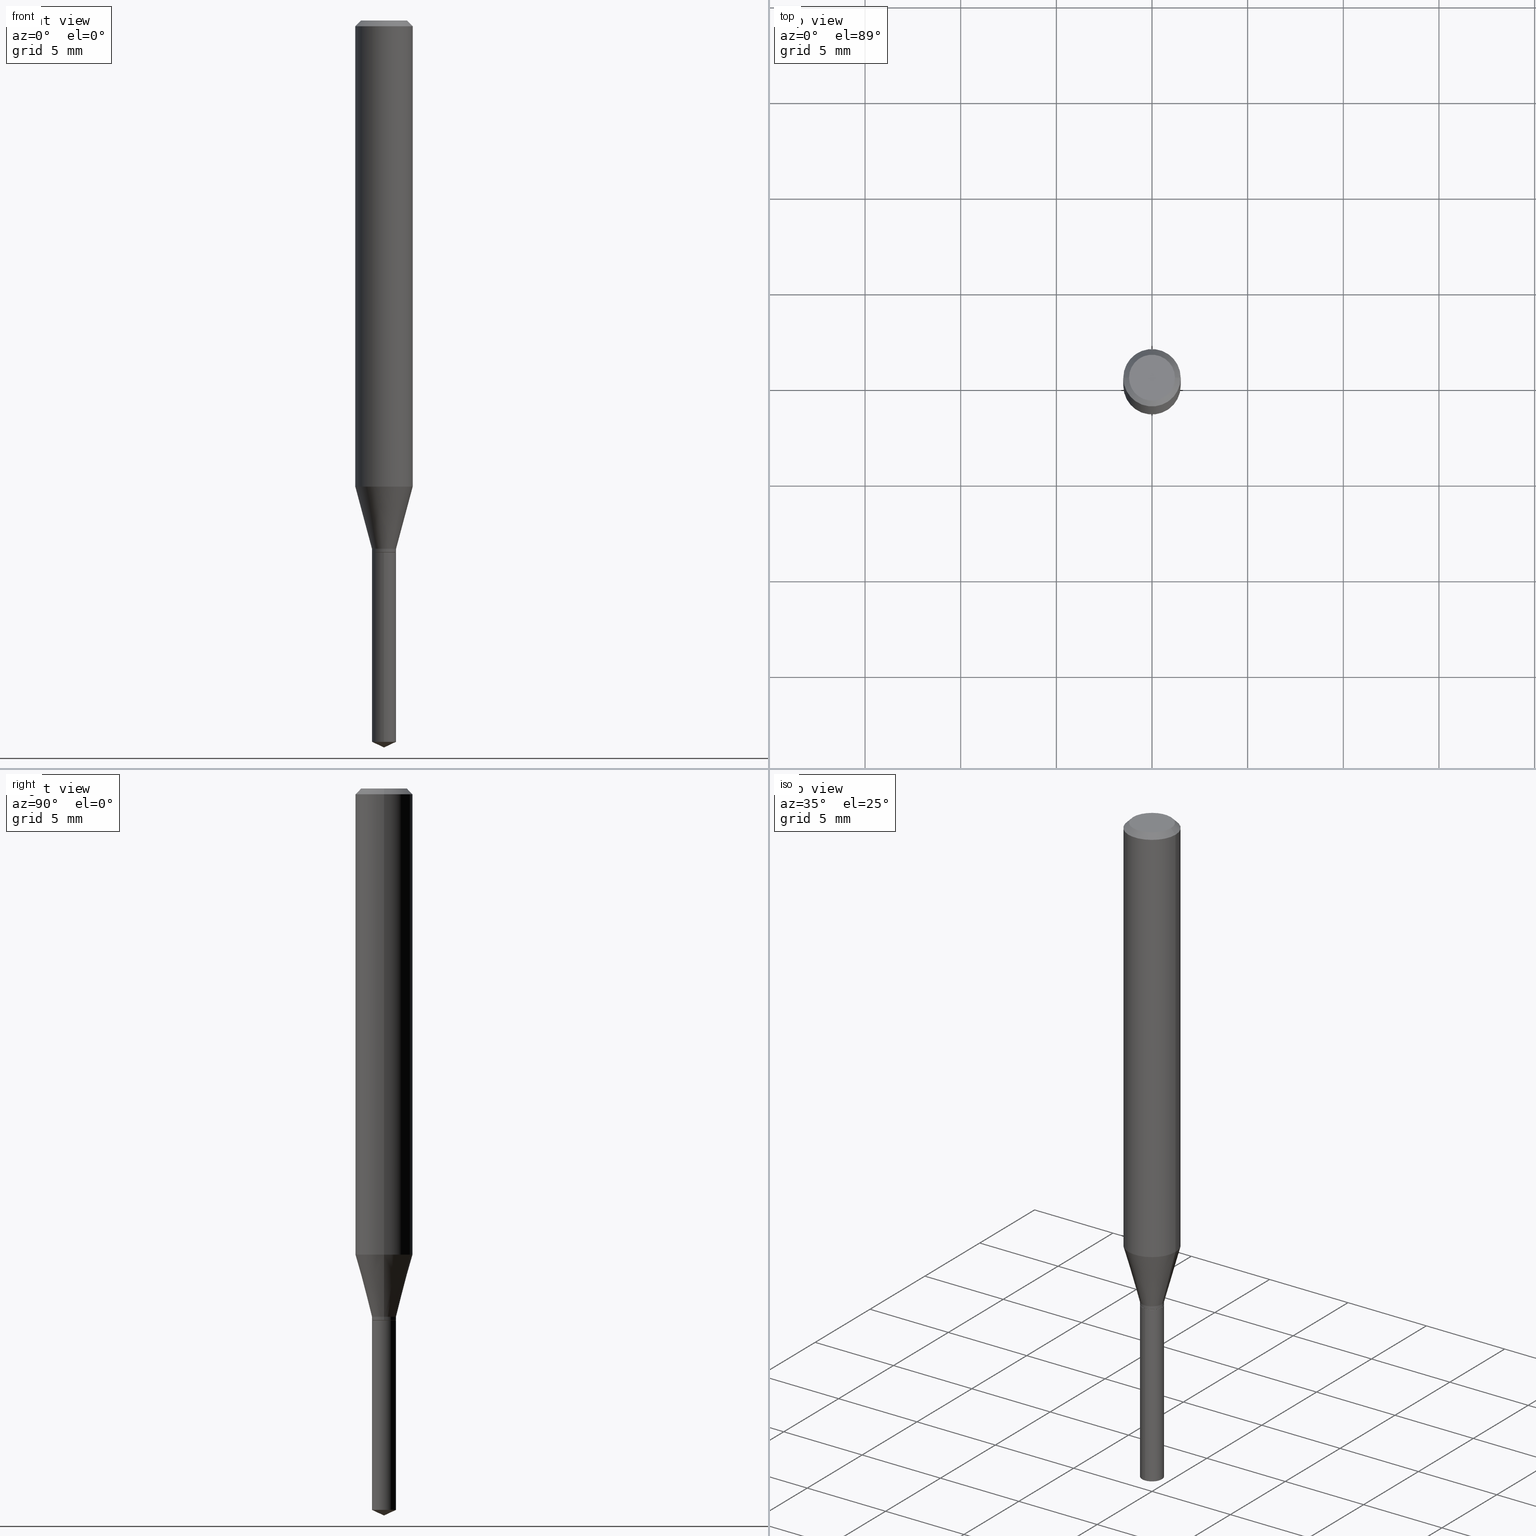
[diagram: canonical four-view strip — front | top / right | iso, engineering-drawing reading convention]
A machine part, canonical four-view strip (front | top / right | iso — engineering-drawing reading convention). The complete STEP part file that produces these views, byte-faithful:
ISO-10303-21;
HEADER;
FILE_DESCRIPTION (( 'STEP AP203' ),
    '1' );
FILE_NAME ('07512.STEP',
    '2024-04-23T22:18:39',
    ( '' ),
    ( '' ),
    'SwSTEP 2.0',
    'SolidWorks 2023',
    '' );
FILE_SCHEMA (( 'CONFIG_CONTROL_DESIGN' ));
ENDSEC;

DATA;
#1 = LINE ( 'NONE', #91, #456 ) ;
#2 = DIRECTION ( 'NONE',  ( -2.445468806185136597E-29, 3.491481338843145583E-15, 1.000000000000000000 ) ) ;
#3 = AXIS2_PLACEMENT_3D ( 'NONE', #328, #98, #468 ) ;
#4 = EDGE_CURVE ( 'NONE', #296, #408, #207, .T. ) ;
#5 = ORIENTED_EDGE ( 'NONE', *, *, #459, .T. ) ;
#6 = CONICAL_SURFACE ( 'NONE', #283, 0.05904999999999999832, 0.7853981633974450594 ) ;
#7 = DIRECTION ( 'NONE',  ( -6.982962677686265922E-15, -1.000000000000000000, 0.000000000000000000 ) ) ;
#8 = EDGE_LOOP ( 'NONE', ( #51, #186, #349, #178 ) ) ;
#9 = FACE_OUTER_BOUND ( 'NONE', #255, .T. ) ;
#10 = ORIENTED_EDGE ( 'NONE', *, *, #70, .T. ) ;
#11 = CARTESIAN_POINT ( 'NONE',  ( 2.676565608369631794E-29, -3.821426325363822773E-15, -1.094499999999999806 ) ) ;
#12 = EDGE_LOOP ( 'NONE', ( #188, #165, #390, #465 ) ) ;
#13 = VECTOR ( 'NONE', #434, 39.37007874015748854 ) ;
#14 = AXIS2_PLACEMENT_3D ( 'NONE', #457, #382, #122 ) ;
#15 = COORDINATED_UNIVERSAL_TIME_OFFSET ( 5, 0, .BEHIND. ) ;
#16 = CARTESIAN_POINT ( 'NONE',  ( -0.02479999999999998178, -3.619374764987879360E-15, -1.087099999999999955 ) ) ;
#17 = SECURITY_CLASSIFICATION_LEVEL ( 'unclassified' ) ;
#18 = DIRECTION ( 'NONE',  ( -0.2588190451025211281, 5.211531920934547886E-15, 0.9659258262890679791 ) ) ;
#19 = APPROVAL_ROLE ( '' ) ;
#20 = DIRECTION ( 'NONE',  ( -2.445468806185136877E-29, 3.491481338843145188E-15, 1.000000000000000000 ) ) ;
#21 = CIRCLE ( 'NONE', #3, 0.02429999999999999868 ) ;
#22 = PERSON_AND_ORGANIZATION_ROLE ( 'design_supplier' ) ;
#23 = EDGE_LOOP ( 'NONE', ( #413, #195, #31 ) ) ;
#24 = DIRECTION ( 'NONE',  ( 1.000000000000000000, -6.982962677686263555E-15, 0.000000000000000000 ) ) ;
#25 = ADVANCED_FACE ( 'NONE', ( #331 ), #131, .T. ) ;
#26 = DIRECTION ( 'NONE',  ( -2.445468806185136597E-29, 3.491481338843145583E-15, 1.000000000000000000 ) ) ;
#27 = CIRCLE ( 'NONE', #220, 0.05904999999999999832 ) ;
#28 = VECTOR ( 'NONE', #47, 39.37007874015748143 ) ;
#29 = CARTESIAN_POINT ( 'NONE',  ( 2.676565608369631794E-29, -3.821426325363822773E-15, -1.094499999999999806 ) ) ;
#30 = DIRECTION ( 'NONE',  ( -2.445468806185136597E-29, 3.491481338843145583E-15, 1.000000000000000000 ) ) ;
#31 = ORIENTED_EDGE ( 'NONE', *, *, #292, .F. ) ;
#32 = APPROVAL_DATE_TIME ( #179, #308 ) ;
#33 = CARTESIAN_POINT ( 'NONE',  ( 3.658664905062460986E-29, -5.223606628546217219E-15, -1.496099999999999985 ) ) ;
#34 = EDGE_LOOP ( 'NONE', ( #42, #247, #241, #90 ) ) ;
#35 = VECTOR ( 'NONE', #401, 39.37007874015748854 ) ;
#36 = CARTESIAN_POINT ( 'NONE',  ( 0.05904999999999999832, -4.535783407291118600E-16, -0.01181000000000007565 ) ) ;
#37 = CONICAL_SURFACE ( 'NONE', #183, 0.02429999999999999868, 0.7853981633973970977 ) ;
#38 = CARTESIAN_POINT ( 'NONE',  ( 2.676565608369631794E-29, -3.821426325363822773E-15, -1.094499999999999806 ) ) ;
#39 = EDGE_LOOP ( 'NONE', ( #419, #268, #455 ) ) ;
#40 = EDGE_CURVE ( 'NONE', #301, #374, #436, .T. ) ;
#41 = DIRECTION ( 'NONE',  ( -2.445468806185136877E-29, 3.491481338843145188E-15, 1.000000000000000000 ) ) ;
#42 = ORIENTED_EDGE ( 'NONE', *, *, #459, .F. ) ;
#43 = CARTESIAN_POINT ( 'NONE',  ( 1.762145984685411522E-16, 0.02479999999999482271, -1.484535570077756272 ) ) ;
#44 = CIRCLE ( 'NONE', #125, 0.02479999999999998178 ) ;
#45 = EDGE_LOOP ( 'NONE', ( #92, #416, #82, #448 ) ) ;
#46 = AXIS2_PLACEMENT_3D ( 'NONE', #262, #443, #410 ) ;
#47 = DIRECTION ( 'NONE',  ( -2.445468806185136877E-29, 3.491481338843145188E-15, 1.000000000000000000 ) ) ;
#48 = ORIENTED_EDGE ( 'NONE', *, *, #147, .T. ) ;
#49 = EDGE_CURVE ( 'NONE', #309, #320, #250, .T. ) ;
#50 = CARTESIAN_POINT ( 'NONE',  ( -0.05904999999999999832, 3.711095515056362547E-16, -0.01181000000000007565 ) ) ;
#51 = ORIENTED_EDGE ( 'NONE', *, *, #394, .T. ) ;
#52 = DIRECTION ( 'NONE',  ( -2.445468806185136597E-29, 3.491481338843145583E-15, 1.000000000000000000 ) ) ;
#53 = AXIS2_PLACEMENT_3D ( 'NONE', #191, #26, #143 ) ;
#54 = SECURITY_CLASSIFICATION ( '', '', #17 ) ;
#55 = PERSON_AND_ORGANIZATION ( #141, #447 ) ;
#56 = DIRECTION ( 'NONE',  ( -2.445470214571802116E-29, 3.491479321953280158E-15, 1.000000000000000000 ) ) ;
#57 = EDGE_CURVE ( 'NONE', #112, #376, #21, .T. ) ;
#58 = DIRECTION ( 'NONE',  ( -6.982962677686267499E-15, -1.000000000000000000, 3.520397390770401805E-15 ) ) ;
#59 = APPLICATION_PROTOCOL_DEFINITION ( 'international standard', 'config_control_design', 1994, #177 ) ;
#60 = DIRECTION ( 'NONE',  ( -2.445468806185136597E-29, 3.491481338843145583E-15, 1.000000000000000000 ) ) ;
#61 = AXIS2_PLACEMENT_3D ( 'NONE', #287, #249, #176 ) ;
#62 = APPROVAL_PERSON_ORGANIZATION ( #240, #308, #355 ) ;
#63 =( NAMED_UNIT ( * ) SI_UNIT ( $, .STERADIAN. ) SOLID_ANGLE_UNIT ( ) );
#64 = DIRECTION ( 'NONE',  ( -2.445468806185136597E-29, 3.491481338843145583E-15, 1.000000000000000000 ) ) ;
#65 = EDGE_CURVE ( 'NONE', #374, #490, #430, .T. ) ;
#66 = CARTESIAN_POINT ( 'NONE',  ( 0.02479999999999998178, -3.968766837863003197E-15, -1.087099999999999955 ) ) ;
#67 = DIRECTION ( 'NONE',  ( -2.445468806185136597E-29, 3.491481338843145583E-15, 1.000000000000000000 ) ) ;
#68 = ORIENTED_EDGE ( 'NONE', *, *, #389, .T. ) ;
#69 = AXIS2_PLACEMENT_3D ( 'NONE', #304, #67, #484 ) ;
#70 = EDGE_CURVE ( 'NONE', #301, #200, #89, .T. ) ;
#71 = CARTESIAN_POINT ( 'NONE',  ( 0.02479999999999998178, -3.992858059101019946E-15, -1.093999999999999861 ) ) ;
#72 = ORIENTED_EDGE ( 'NONE', *, *, #204, .F. ) ;
#73 = CARTESIAN_POINT ( 'NONE',  ( 2.676565608369631794E-29, -3.821426325363822773E-15, -1.094499999999999806 ) ) ;
#74 = EDGE_CURVE ( 'NONE', #193, #485, #95, .T. ) ;
#75 = EDGE_LOOP ( 'NONE', ( #386, #234, #383, #226 ) ) ;
#76 = FACE_OUTER_BOUND ( 'NONE', #202, .T. ) ;
#77 = ORIENTED_EDGE ( 'NONE', *, *, #292, .T. ) ;
#78 = EDGE_CURVE ( 'NONE', #408, #458, #169, .T. ) ;
#79 = VECTOR ( 'NONE', #441, 39.37007874015748143 ) ;
#80 = LINE ( 'NONE', #120, #387 ) ;
#81 = AXIS2_PLACEMENT_3D ( 'NONE', #422, #453, #391 ) ;
#82 = ORIENTED_EDGE ( 'NONE', *, *, #151, .T. ) ;
#83 = ADVANCED_FACE ( 'NONE', ( #213 ), #135, .T. ) ;
#84 = CYLINDRICAL_SURFACE ( 'NONE', #81, 0.02479999999999999913 ) ;
#85 = DIRECTION ( 'NONE',  ( 2.445468806185136597E-29, -3.491481338843145583E-15, -1.000000000000000000 ) ) ;
#86 = ORIENTED_EDGE ( 'NONE', *, *, #204, .T. ) ;
#87 = CARTESIAN_POINT ( 'NONE',  ( 3.630385977618317667E-29, -5.183227453116567846E-15, -1.484535570077756272 ) ) ;
#88 = EDGE_CURVE ( 'NONE', #490, #485, #257, .T. ) ;
#89 = CIRCLE ( 'NONE', #431, 0.02479999999999998178 ) ;
#90 = ORIENTED_EDGE ( 'NONE', *, *, #232, .T. ) ;
#91 = CARTESIAN_POINT ( 'NONE',  ( -1.731774744065926436E-16, -0.02480000000000381899, -1.094499999999999806 ) ) ;
#92 = ORIENTED_EDGE ( 'NONE', *, *, #101, .F. ) ;
#93 = ORIENTED_EDGE ( 'NONE', *, *, #49, .F. ) ;
#94 = DATE_AND_TIME ( #325, #478 ) ;
#95 = LINE ( 'NONE', #167, #35 ) ;
#96 = LOCAL_TIME ( 18, 18, 39.00000000000000000, #15 ) ;
#97 = DIRECTION ( 'NONE',  ( -2.445468806185136597E-29, 3.491481338843145583E-15, 1.000000000000000000 ) ) ;
#98 = DIRECTION ( 'NONE',  ( -2.445468806185136597E-29, 3.491481338843145583E-15, 1.000000000000000000 ) ) ;
#99 =( CONVERSION_BASED_UNIT ( 'INCH', #398 ) LENGTH_UNIT ( ) NAMED_UNIT ( #105 ) );
#100 = DIRECTION ( 'NONE',  ( -2.445470214571802396E-29, 3.491479321953280158E-15, 1.000000000000000000 ) ) ;
#101 = EDGE_CURVE ( 'NONE', #376, #301, #130, .T. ) ;
#102 =( GEOMETRIC_REPRESENTATION_CONTEXT ( 3 ) GLOBAL_UNCERTAINTY_ASSIGNED_CONTEXT ( ( #312 ) ) GLOBAL_UNIT_ASSIGNED_CONTEXT ( ( #99, #242, #63 ) ) REPRESENTATION_CONTEXT ( 'NONE', 'WORKASPACE' ) );
#103 = FACE_OUTER_BOUND ( 'NONE', #270, .T. ) ;
#104 = DIRECTION ( 'NONE',  ( -2.445468806185136877E-29, 3.491481338843145188E-15, 1.000000000000000000 ) ) ;
#105 = DIMENSIONAL_EXPONENTS ( 1.000000000000000000, 0.000000000000000000, 0.000000000000000000, 0.000000000000000000, 0.000000000000000000, 0.000000000000000000, 0.000000000000000000 ) ;
#106 = CARTESIAN_POINT ( 'NONE',  ( 2.658469139203861920E-29, -3.795589363456383732E-15, -1.087099999999999955 ) ) ;
#107 = ORIENTED_EDGE ( 'NONE', *, *, #57, .F. ) ;
#108 = CIRCLE ( 'NONE', #69, 0.02479999999999998178 ) ;
#109 = PRODUCT_RELATED_PRODUCT_CATEGORY ( 'detail', '', ( #475 ) ) ;
#110 = AXIS2_PLACEMENT_3D ( 'NONE', #87, #230, #7 ) ;
#111 = DIRECTION ( 'NONE',  ( 2.445468806185136597E-29, -3.491481338843145583E-15, -1.000000000000000000 ) ) ;
#112 = VERTEX_POINT ( 'NONE', #466 ) ;
#113 = CYLINDRICAL_SURFACE ( 'NONE', #46, 0.02479999999999998178 ) ;
#114 = CARTESIAN_POINT ( 'NONE',  ( 2.676565608369631794E-29, -3.821426325363822773E-15, -1.094499999999999806 ) ) ;
#115 = EDGE_CURVE ( 'NONE', #278, #119, #293, .T. ) ;
#116 = EDGE_LOOP ( 'NONE', ( #421, #48 ) ) ;
#117 = AXIS2_PLACEMENT_3D ( 'NONE', #145, #153, #335 ) ;
#118 = DIRECTION ( 'NONE',  ( -6.982962677686265922E-15, -1.000000000000000000, 5.507758051742466478E-15 ) ) ;
#119 = VERTEX_POINT ( 'NONE', #138 ) ;
#120 = CARTESIAN_POINT ( 'NONE',  ( 0.05904999999999999832, -4.463468013801466955E-16, -0.01181000000000007565 ) ) ;
#121 = ORIENTED_EDGE ( 'NONE', *, *, #74, .T. ) ;
#122 = DIRECTION ( 'NONE',  ( 1.000000000000000000, -6.982962677686266711E-15, 4.876176775795935793E-29 ) ) ;
#123 = ORIENTED_EDGE ( 'NONE', *, *, #49, .T. ) ;
#124 = CARTESIAN_POINT ( 'NONE',  ( 2.888098660104664642E-31, -4.123439461173780879E-17, -0.01181000000000007565 ) ) ;
#125 = AXIS2_PLACEMENT_3D ( 'NONE', #290, #52, #24 ) ;
#126 = APPLICATION_CONTEXT ( 'configuration controlled 3d designs of mechanical parts and assemblies' ) ;
#127 = APPROVAL_DATE_TIME ( #400, #429 ) ;
#128 = DIRECTION ( 'NONE',  ( -2.445470214571802116E-29, 3.491479321953280158E-15, 1.000000000000000000 ) ) ;
#129 = MECHANICAL_CONTEXT ( 'NONE', #126, 'mechanical' ) ;
#130 = LINE ( 'NONE', #321, #282 ) ;
#131 = CONICAL_SURFACE ( 'NONE', #418, 84.42940631927558570, 1.134464013796321558 ) ;
#132 = CIRCLE ( 'NONE', #197, 0.05905000000000011628 ) ;
#133 = EDGE_CURVE ( 'NONE', #193, #374, #44, .T. ) ;
#134 = PERSON_AND_ORGANIZATION ( #141, #447 ) ;
#135 = CYLINDRICAL_SURFACE ( 'NONE', #393, 0.02479999999999999913 ) ;
#136 = ADVANCED_FACE ( 'NONE', ( #280 ), #164, .T. ) ;
#137 = CALENDAR_DATE ( 2024, 23, 4 ) ;
#138 = CARTESIAN_POINT ( 'NONE',  ( 0.04724000000000000421, -3.852183633974369345E-16, -3.380025165621689721E-19 ) ) ;
#139 = LINE ( 'NONE', #291, #79 ) ;
#140 = AXIS2_PLACEMENT_3D ( 'NONE', #297, #377, #155 ) ;
#141 = PERSON ( 'UNSPECIFIED', 'UNSPECIFIED', 'UNSPECIFIED', ('UNSPECIFIED'), ('UNSPECIFIED'), ('UNSPECIFIED') ) ;
#142 = AXIS2_PLACEMENT_3D ( 'NONE', #467, #281, #433 ) ;
#143 = DIRECTION ( 'NONE',  ( 1.000000000000000000, -6.982962677686263555E-15, 0.000000000000000000 ) ) ;
#144 = ORIENTED_EDGE ( 'NONE', *, *, #232, .F. ) ;
#145 = CARTESIAN_POINT ( 'NONE',  ( 2.676565608369631794E-29, -3.821426325363822773E-15, -1.094499999999999806 ) ) ;
#146 = ORIENTED_EDGE ( 'NONE', *, *, #225, .T. ) ;
#147 = EDGE_CURVE ( 'NONE', #119, #278, #228, .T. ) ;
#148 = MANIFOLD_SOLID_BREP ( 'Body-Move/Copy2[1]', #302 ) ;
#149 = FACE_OUTER_BOUND ( 'NONE', #34, .T. ) ;
#150 = ORIENTED_EDGE ( 'NONE', *, *, #133, .F. ) ;
#151 = EDGE_CURVE ( 'NONE', #112, #200, #139, .T. ) ;
#152 = CIRCLE ( 'NONE', #174, 0.02479999999999999913 ) ;
#153 = DIRECTION ( 'NONE',  ( -2.445468806185136597E-29, 3.491481338843145583E-15, 1.000000000000000000 ) ) ;
#154 = PRODUCT_DEFINITION_SHAPE ( 'NONE', 'NONE',  #409 ) ;
#155 = DIRECTION ( 'NONE',  ( 1.000000000000000000, -6.982962677686266711E-15, 4.876176775795935793E-29 ) ) ;
#156 = CONICAL_SURFACE ( 'NONE', #347, 0.02479999999999998178, 0.2617993877991498519 ) ;
#157 = DIRECTION ( 'NONE',  ( 1.000000000000000000, -6.982962677686266711E-15, 4.876176775795935793E-29 ) ) ;
#158 = DIRECTION ( 'NONE',  ( -2.438088387897960049E-29, 3.491481338843145188E-15, 1.000000000000000000 ) ) ;
#159 = ORIENTED_EDGE ( 'NONE', *, *, #289, .F. ) ;
#160 = FACE_OUTER_BOUND ( 'NONE', #116, .T. ) ;
#161 = ORIENTED_EDGE ( 'NONE', *, *, #445, .F. ) ;
#162 = ADVANCED_FACE ( 'NONE', ( #482 ), #339, .T. ) ;
#163 = CARTESIAN_POINT ( 'NONE',  ( -1.731774744065926436E-16, -0.02480000000000381899, -1.094499999999999806 ) ) ;
#164 = CONICAL_SURFACE ( 'NONE', #439, 84.42940631927558570, 1.134464013796321558 ) ;
#165 = ORIENTED_EDGE ( 'NONE', *, *, #65, .T. ) ;
#166 = CC_DESIGN_PERSON_AND_ORGANIZATION_ASSIGNMENT ( #55, #248, ( #221 ) ) ;
#167 = CARTESIAN_POINT ( 'NONE',  ( 0.02479999999999998178, -3.968766837863003197E-15, -1.087099999999999955 ) ) ;
#168 = CALENDAR_DATE ( 2024, 23, 4 ) ;
#169 = LINE ( 'NONE', #246, #173 ) ;
#170 = DESIGN_CONTEXT ( 'detailed design', #177, 'design' ) ;
#171 = COORDINATED_UNIVERSAL_TIME_OFFSET ( 5, 0, .BEHIND. ) ;
#172 = DIRECTION ( 'NONE',  ( -2.445470214571802116E-29, 3.491479321953280158E-15, 1.000000000000000000 ) ) ;
#173 = VECTOR ( 'NONE', #100, 39.37007874015748143 ) ;
#174 = AXIS2_PLACEMENT_3D ( 'NONE', #406, #370, #222 ) ;
#175 =( LENGTH_UNIT ( ) NAMED_UNIT ( * ) SI_UNIT ( $, .METRE. ) );
#176 = DIRECTION ( 'NONE',  ( 1.000000000000000000, -6.982962677686266711E-15, 0.000000000000000000 ) ) ;
#177 = APPLICATION_CONTEXT ( 'configuration controlled 3d designs of mechanical parts and assemblies' ) ;
#178 = ORIENTED_EDGE ( 'NONE', *, *, #415, .F. ) ;
#179 = DATE_AND_TIME ( #367, #96 ) ;
#180 = CARTESIAN_POINT ( 'NONE',  ( 3.658667988020872822E-29, -5.223602213574301462E-15, -1.496099999999999985 ) ) ;
#181 = ORIENTED_EDGE ( 'NONE', *, *, #289, .T. ) ;
#182 = AXIS2_PLACEMENT_3D ( 'NONE', #405, #64, #366 ) ;
#183 = AXIS2_PLACEMENT_3D ( 'NONE', #11, #451, #275 ) ;
#184 = FACE_OUTER_BOUND ( 'NONE', #444, .T. ) ;
#185 = CARTESIAN_POINT ( 'NONE',  ( 2.658469139203861920E-29, -3.795589363456383732E-15, -1.087099999999999955 ) ) ;
#186 = ORIENTED_EDGE ( 'NONE', *, *, #78, .T. ) ;
#187 = FACE_OUTER_BOUND ( 'NONE', #12, .T. ) ;
#188 = ORIENTED_EDGE ( 'NONE', *, *, #133, .T. ) ;
#189 = EDGE_CURVE ( 'NONE', #200, #301, #108, .T. ) ;
#190 = CIRCLE ( 'NONE', #117, 0.02429999999999999868 ) ;
#191 = CARTESIAN_POINT ( 'NONE',  ( 2.658469139203861920E-29, -3.795589363456383732E-15, -1.087099999999999955 ) ) ;
#192 = PLANE ( 'NONE',  #243 ) ;
#193 = VERTEX_POINT ( 'NONE', #66 ) ;
#194 = FACE_OUTER_BOUND ( 'NONE', #483, .T. ) ;
#195 = ORIENTED_EDGE ( 'NONE', *, *, #237, .T. ) ;
#196 = CLOSED_SHELL ( 'NONE', ( #223, #469, #464, #298, #314, #162, #218, #472, #285, #486, #358, #449 ) ) ;
#197 = AXIS2_PLACEMENT_3D ( 'NONE', #388, #2, #385 ) ;
#198 = DIRECTION ( 'NONE',  ( -2.445470214571802396E-29, 3.491479321953280158E-15, 1.000000000000000000 ) ) ;
#199 = CC_DESIGN_PERSON_AND_ORGANIZATION_ASSIGNMENT ( #403, #22, ( #221 ) ) ;
#200 = VERTEX_POINT ( 'NONE', #71 ) ;
#201 = LINE ( 'NONE', #313, #28 ) ;
#202 = EDGE_LOOP ( 'NONE', ( #107, #462 ) ) ;
#203 = LINE ( 'NONE', #50, #425 ) ;
#204 = EDGE_CURVE ( 'NONE', #374, #193, #363, .T. ) ;
#205 = APPROVAL_STATUS ( 'not_yet_approved' ) ;
#206 = CONICAL_SURFACE ( 'NONE', #53, 0.02479999999999998178, 0.2617993877991498519 ) ;
#207 = LINE ( 'NONE', #392, #13 ) ;
#208 = PERSON_AND_ORGANIZATION ( #141, #447 ) ;
#209 = DIRECTION ( 'NONE',  ( -6.982962677686267499E-15, -1.000000000000000000, 3.520397390770401805E-15 ) ) ;
#210 = COORDINATED_UNIVERSAL_TIME_OFFSET ( 5, 0, .BEHIND. ) ;
#211 = ORIENTED_EDGE ( 'NONE', *, *, #78, .F. ) ;
#212 = DATE_AND_TIME ( #357, #411 ) ;
#213 = FACE_OUTER_BOUND ( 'NONE', #8, .T. ) ;
#214 = AXIS2_PLACEMENT_3D ( 'NONE', #356, #97, #359 ) ;
#215 = APPROVAL_ROLE ( '' ) ;
#216 = CARTESIAN_POINT ( 'NONE',  ( -0.02479999999999998178, 1.762145984685047166E-16, -1.219895902383215719E-30 ) ) ;
#217 = DIRECTION ( 'NONE',  ( 1.000000000000000000, -6.982962677686263555E-15, 0.000000000000000000 ) ) ;
#218 = ADVANCED_FACE ( 'NONE', ( #184 ), #206, .T. ) ;
#219 = CARTESIAN_POINT ( 'NONE',  ( -0.04724000000000000421, 3.504923541997677355E-16, -3.380025165670481712E-19 ) ) ;
#220 = AXIS2_PLACEMENT_3D ( 'NONE', #338, #375, #254 ) ;
#221 = PRODUCT_DEFINITION_FORMATION_WITH_SPECIFIED_SOURCE ( 'ANY', '', #475, .NOT_KNOWN. ) ;
#222 = DIRECTION ( 'NONE',  ( -6.982962677686265922E-15, -1.000000000000000000, 0.000000000000000000 ) ) ;
#223 = ADVANCED_FACE ( 'NONE', ( #305 ), #477, .T. ) ;
#224 = DIRECTION ( 'NONE',  ( -6.982962677686265922E-15, -1.000000000000000000, 5.507758051742466478E-15 ) ) ;
#225 = EDGE_CURVE ( 'NONE', #485, #309, #227, .T. ) ;
#226 = ORIENTED_EDGE ( 'NONE', *, *, #151, .F. ) ;
#227 = LINE ( 'NONE', #412, #332 ) ;
#228 = CIRCLE ( 'NONE', #182, 0.04724000000000000421 ) ;
#229 = CARTESIAN_POINT ( 'NONE',  ( 0.000000000000000000, 0.000000000000000000, 0.000000000000000000 ) ) ;
#230 = DIRECTION ( 'NONE',  ( -2.445470214571802116E-29, 3.491479321953280158E-15, 1.000000000000000000 ) ) ;
#231 = ORIENTED_EDGE ( 'NONE', *, *, #381, .T. ) ;
#232 = EDGE_CURVE ( 'NONE', #320, #309, #27, .T. ) ;
#233 = DIRECTION ( 'NONE',  ( -2.445470214571802116E-29, 3.491479321953280158E-15, 1.000000000000000000 ) ) ;
#234 = ORIENTED_EDGE ( 'NONE', *, *, #101, .T. ) ;
#235 = CC_DESIGN_SECURITY_CLASSIFICATION ( #54, ( #221 ) ) ;
#236 = FACE_OUTER_BOUND ( 'NONE', #45, .T. ) ;
#237 = EDGE_CURVE ( 'NONE', #296, #284, #372, .T. ) ;
#238 = DIRECTION ( 'NONE',  ( -1.000000000000000000, 6.982962677686265922E-15, -4.876176775795935793E-29 ) ) ;
#239 = EDGE_LOOP ( 'NONE', ( #211, #77, #481, #159 ) ) ;
#240 = PERSON_AND_ORGANIZATION ( #141, #447 ) ;
#241 = ORIENTED_EDGE ( 'NONE', *, *, #435, .T. ) ;
#242 =( NAMED_UNIT ( * ) PLANE_ANGLE_UNIT ( ) SI_UNIT ( $, .RADIAN. ) );
#243 = AXIS2_PLACEMENT_3D ( 'NONE', #315, #461, #238 ) ;
#244 = CARTESIAN_POINT ( 'NONE',  ( 2.676565608369631794E-29, -3.821426325363822773E-15, -1.094499999999999806 ) ) ;
#245 = PERSON_AND_ORGANIZATION_ROLE ( 'design_owner' ) ;
#246 = CARTESIAN_POINT ( 'NONE',  ( 1.762145984685315626E-16, 0.02479999999999617927, -1.094500000000000028 ) ) ;
#247 = ORIENTED_EDGE ( 'NONE', *, *, #115, .F. ) ;
#248 = PERSON_AND_ORGANIZATION_ROLE ( 'creator' ) ;
#249 = DIRECTION ( 'NONE',  ( -2.445468806185136597E-29, 3.491481338843145583E-15, 1.000000000000000000 ) ) ;
#250 = CIRCLE ( 'NONE', #214, 0.05904999999999999832 ) ;
#251 = AXIS2_PLACEMENT_3D ( 'NONE', #73, #295, #224 ) ;
#252 = PLANE ( 'NONE',  #326 ) ;
#253 = APPROVAL ( #322, 'UNSPECIFIED' ) ;
#254 = DIRECTION ( 'NONE',  ( 1.000000000000000000, -6.982962677686266711E-15, 0.000000000000000000 ) ) ;
#255 = EDGE_LOOP ( 'NONE', ( #161, #340, #146, #144 ) ) ;
#256 = DIRECTION ( 'NONE',  ( 1.000000000000000000, -6.982962677686263555E-15, 0.000000000000000000 ) ) ;
#257 = CIRCLE ( 'NONE', #61, 0.05905000000000011628 ) ;
#258 = APPROVAL_PERSON_ORGANIZATION ( #329, #429, #215 ) ;
#259 = CC_DESIGN_DATE_AND_TIME_ASSIGNMENT ( #428, #437, ( #54 ) ) ;
#260 = DIRECTION ( 'NONE',  ( -2.445468806185136597E-29, 3.491481338843145583E-15, 1.000000000000000000 ) ) ;
#261 = ORIENTED_EDGE ( 'NONE', *, *, #445, .T. ) ;
#262 = CARTESIAN_POINT ( 'NONE',  ( 0.000000000000000000, 0.000000000000000000, 0.000000000000000000 ) ) ;
#263 = CARTESIAN_POINT ( 'NONE',  ( 1.762145984685411522E-16, 0.02479999999999617927, -1.094500000000000028 ) ) ;
#264 = ORIENTED_EDGE ( 'NONE', *, *, #40, .T. ) ;
#265 = CIRCLE ( 'NONE', #251, 0.02479999999999999913 ) ;
#266 = CC_DESIGN_APPROVAL ( #429, ( #409 ) ) ;
#267 = CARTESIAN_POINT ( 'NONE',  ( -0.05905000000000011628, -2.929723166044281078E-15, -0.9592772598407656170 ) ) ;
#268 = ORIENTED_EDGE ( 'NONE', *, *, #4, .T. ) ;
#269 = FACE_OUTER_BOUND ( 'NONE', #452, .T. ) ;
#270 = EDGE_LOOP ( 'NONE', ( #231, #181 ) ) ;
#271 = ADVANCED_FACE ( 'NONE', ( #103 ), #252, .F. ) ;
#272 = CARTESIAN_POINT ( 'NONE',  ( 0.05905000000000011628, -3.761642597627995886E-15, -0.9592772598407656170 ) ) ;
#273 = AXIS2_PLACEMENT_3D ( 'NONE', #185, #260, #217 ) ;
#274 = CC_DESIGN_APPROVAL ( #253, ( #221 ) ) ;
#275 = DIRECTION ( 'NONE',  ( 1.000000000000000000, -6.982962677686257244E-15, 0.000000000000000000 ) ) ;
#276 = ORIENTED_EDGE ( 'NONE', *, *, #147, .F. ) ;
#277 = PERSON_AND_ORGANIZATION_ROLE ( 'creator' ) ;
#278 = VERTEX_POINT ( 'NONE', #219 ) ;
#279 = APPROVAL_STATUS ( 'not_yet_approved' ) ;
#280 = FACE_OUTER_BOUND ( 'NONE', #39, .T. ) ;
#281 = DIRECTION ( 'NONE',  ( 0.000000000000000000, 0.000000000000000000, 1.000000000000000000 ) ) ;
#282 = VECTOR ( 'NONE', #330, 39.37007874015748143 ) ;
#283 = AXIS2_PLACEMENT_3D ( 'NONE', #124, #85, #460 ) ;
#284 = VERTEX_POINT ( 'NONE', #368 ) ;
#285 = ADVANCED_FACE ( 'NONE', ( #149 ), #380, .T. ) ;
#286 = COORDINATED_UNIVERSAL_TIME_OFFSET ( 5, 0, .BEHIND. ) ;
#287 = CARTESIAN_POINT ( 'NONE',  ( 2.345882615423346285E-29, -3.349298651510620571E-15, -0.9592772598407656170 ) ) ;
#288 = PERSON_AND_ORGANIZATION_ROLE ( 'classification_officer' ) ;
#289 = EDGE_CURVE ( 'NONE', #458, #378, #265, .T. ) ;
#290 = CARTESIAN_POINT ( 'NONE',  ( 2.658469139203861920E-29, -3.795589363456383732E-15, -1.087099999999999955 ) ) ;
#291 = CARTESIAN_POINT ( 'NONE',  ( 0.02429999999999999868, -3.991112318431598442E-15, -1.094499999999999806 ) ) ;
#292 = EDGE_CURVE ( 'NONE', #408, #284, #152, .T. ) ;
#293 = CIRCLE ( 'NONE', #317, 0.04724000000000000421 ) ;
#294 = CIRCLE ( 'NONE', #404, 0.02479999999999999913 ) ;
#295 = DIRECTION ( 'NONE',  ( -2.445470214571802116E-29, 3.491479321953280158E-15, 1.000000000000000000 ) ) ;
#296 = VERTEX_POINT ( 'NONE', #180 ) ;
#297 = CARTESIAN_POINT ( 'NONE',  ( 0.000000000000000000, 0.000000000000000000, 0.000000000000000000 ) ) ;
#298 = ADVANCED_FACE ( 'NONE', ( #187 ), #156, .T. ) ;
#299 = MANIFOLD_SOLID_BREP ( 'Body-Move/Copy2[2]', #196 ) ;
#300 = CARTESIAN_POINT ( 'NONE',  ( 2.676565608369631794E-29, -3.821426325363822773E-15, -1.094499999999999806 ) ) ;
#301 = VERTEX_POINT ( 'NONE', #487 ) ;
#302 = CLOSED_SHELL ( 'NONE', ( #83, #136, #25, #365, #271 ) ) ;
#303 = EDGE_CURVE ( 'NONE', #376, #112, #190, .T. ) ;
#304 = CARTESIAN_POINT ( 'NONE',  ( 2.675342873966538993E-29, -3.819680584694400481E-15, -1.093999999999999861 ) ) ;
#305 = FACE_OUTER_BOUND ( 'NONE', #75, .T. ) ;
#306 = EDGE_LOOP ( 'NONE', ( #316, #10, #68, #72 ) ) ;
#307 = CARTESIAN_POINT ( 'NONE',  ( -0.02429999999999999868, -3.646115213400007310E-15, -1.094499999999999806 ) ) ;
#308 = APPROVAL ( #205, 'UNSPECIFIED' ) ;
#309 = VERTEX_POINT ( 'NONE', #36 ) ;
#310 = LOCAL_TIME ( 18, 18, 39.00000000000000000, #286 ) ;
#311 = CYLINDRICAL_SURFACE ( 'NONE', #14, 0.05905000000000006077 ) ;
#312 = UNCERTAINTY_MEASURE_WITH_UNIT (LENGTH_MEASURE( 1.000000000000000082E-05 ), #99, 'distance_accuracy_value', 'NONE');
#313 = CARTESIAN_POINT ( 'NONE',  ( 0.02479999999999998178, -1.731774744066192923E-16, 1.209291840397391216E-30 ) ) ;
#314 = ADVANCED_FACE ( 'NONE', ( #333 ), #113, .T. ) ;
#315 = CARTESIAN_POINT ( 'NONE',  ( 4.132873053354867254E-48, -5.900647395337818946E-34, -1.690012582823346072E-19 ) ) ;
#316 = ORIENTED_EDGE ( 'NONE', *, *, #40, .F. ) ;
#317 = AXIS2_PLACEMENT_3D ( 'NONE', #397, #474, #323 ) ;
#318 = AXIS2_PLACEMENT_3D ( 'NONE', #229, #351, #157 ) ;
#319 = APPLICATION_PROTOCOL_DEFINITION ( 'international standard', 'config_control_design', 1994, #126 ) ;
#320 = VERTEX_POINT ( 'NONE', #414 ) ;
#321 = CARTESIAN_POINT ( 'NONE',  ( -0.02429999999999999868, -3.648764440574118511E-15, -1.094499999999999806 ) ) ;
#322 = APPROVAL_STATUS ( 'not_yet_approved' ) ;
#323 = DIRECTION ( 'NONE',  ( 1.000000000000000000, -6.982962677686266711E-15, 4.876185090822587894E-29 ) ) ;
#324 = CC_DESIGN_PERSON_AND_ORGANIZATION_ASSIGNMENT ( #134, #288, ( #54 ) ) ;
#325 = CALENDAR_DATE ( 2024, 23, 4 ) ;
#326 = AXIS2_PLACEMENT_3D ( 'NONE', #29, #407, #450 ) ;
#327 = AXIS2_PLACEMENT_3D ( 'NONE', #489, #111, #442 ) ;
#328 = CARTESIAN_POINT ( 'NONE',  ( 2.676565608369631794E-29, -3.821426325363822773E-15, -1.094499999999999806 ) ) ;
#329 = PERSON_AND_ORGANIZATION ( #141, #447 ) ;
#330 = DIRECTION ( 'NONE',  ( -0.7071067811865112684, 7.493145998870223209E-15, 0.7071067811865837660 ) ) ;
#331 = FACE_OUTER_BOUND ( 'NONE', #23, .T. ) ;
#332 = VECTOR ( 'NONE', #104, 39.37007874015748143 ) ;
#333 = FACE_OUTER_BOUND ( 'NONE', #427, .T. ) ;
#334 = ORIENTED_EDGE ( 'NONE', *, *, #189, .T. ) ;
#335 = DIRECTION ( 'NONE',  ( 1.000000000000000000, -6.982962677686257244E-15, 0.000000000000000000 ) ) ;
#336 = ORIENTED_EDGE ( 'NONE', *, *, #225, .F. ) ;
#337 = DIRECTION ( 'NONE',  ( 1.000000000000000000, -6.982962677686257244E-15, 0.000000000000000000 ) ) ;
#338 = CARTESIAN_POINT ( 'NONE',  ( 2.888098660104664642E-31, -4.123439461173780879E-17, -0.01181000000000007565 ) ) ;
#339 = CYLINDRICAL_SURFACE ( 'NONE', #140, 0.02479999999999998178 ) ;
#340 = ORIENTED_EDGE ( 'NONE', *, *, #88, .T. ) ;
#341 = ADVANCED_BREP_SHAPE_REPRESENTATION ( '07512', ( #148, #299, #142 ), #102 ) ;
#342 = CC_DESIGN_PERSON_AND_ORGANIZATION_ASSIGNMENT ( #208, #277, ( #409 ) ) ;
#343 = DIRECTION ( 'NONE',  ( 1.000000000000000000, -6.982962677686265922E-15, 4.876176775795935793E-29 ) ) ;
#344 = PLANE ( 'NONE',  #395 ) ;
#345 = ORIENTED_EDGE ( 'NONE', *, *, #389, .F. ) ;
#346 = VECTOR ( 'NONE', #446, 39.37007874015748143 ) ;
#347 = AXIS2_PLACEMENT_3D ( 'NONE', #106, #30, #256 ) ;
#348 = CYLINDRICAL_SURFACE ( 'NONE', #318, 0.05905000000000006077 ) ;
#349 = ORIENTED_EDGE ( 'NONE', *, *, #381, .F. ) ;
#350 = CC_DESIGN_PERSON_AND_ORGANIZATION_ASSIGNMENT ( #360, #245, ( #475 ) ) ;
#351 = DIRECTION ( 'NONE',  ( -2.445468806185136597E-29, 3.491481338843145583E-15, 1.000000000000000000 ) ) ;
#352 = ORIENTED_EDGE ( 'NONE', *, *, #435, .F. ) ;
#353 = CARTESIAN_POINT ( 'NONE',  ( -0.05905000000000006077, 4.195754854663395916E-16, -2.904631170795524694E-30 ) ) ;
#354 = ORIENTED_EDGE ( 'NONE', *, *, #88, .F. ) ;
#355 = APPROVAL_ROLE ( '' ) ;
#356 = CARTESIAN_POINT ( 'NONE',  ( 2.888098660104664642E-31, -4.123439461173780879E-17, -0.01181000000000007565 ) ) ;
#357 = CALENDAR_DATE ( 2024, 23, 4 ) ;
#358 = ADVANCED_FACE ( 'NONE', ( #76 ), #344, .F. ) ;
#359 = DIRECTION ( 'NONE',  ( 1.000000000000000000, -6.982962677686266711E-15, 0.000000000000000000 ) ) ;
#360 = PERSON_AND_ORGANIZATION ( #141, #447 ) ;
#361 = ORIENTED_EDGE ( 'NONE', *, *, #402, .T. ) ;
#362 = DATE_TIME_ROLE ( 'creation_date' ) ;
#363 = CIRCLE ( 'NONE', #273, 0.02479999999999998178 ) ;
#364 = DIRECTION ( 'NONE',  ( -6.982962677686265922E-15, -1.000000000000000000, 5.507758051742466478E-15 ) ) ;
#365 = ADVANCED_FACE ( 'NONE', ( #420 ), #84, .T. ) ;
#366 = DIRECTION ( 'NONE',  ( 1.000000000000000000, -6.982962677686266711E-15, 4.876185090822587894E-29 ) ) ;
#367 = CALENDAR_DATE ( 2024, 23, 4 ) ;
#368 = CARTESIAN_POINT ( 'NONE',  ( -1.731774744065831280E-16, -0.02480000000000518595, -1.484535570077756272 ) ) ;
#369 = SHAPE_DEFINITION_REPRESENTATION ( #154, #341 ) ;
#370 = DIRECTION ( 'NONE',  ( -2.445470214571802116E-29, 3.491479321953280158E-15, 1.000000000000000000 ) ) ;
#371 = CC_DESIGN_APPROVAL ( #308, ( #54 ) ) ;
#372 = LINE ( 'NONE', #33, #346 ) ;
#373 = CC_DESIGN_DATE_AND_TIME_ASSIGNMENT ( #212, #362, ( #409 ) ) ;
#374 = VERTEX_POINT ( 'NONE', #424 ) ;
#375 = DIRECTION ( 'NONE',  ( -2.445468806185136597E-29, 3.491481338843145583E-15, 1.000000000000000000 ) ) ;
#376 = VERTEX_POINT ( 'NONE', #307 ) ;
#377 = DIRECTION ( 'NONE',  ( -2.445468806185136597E-29, 3.491481338843145583E-15, 1.000000000000000000 ) ) ;
#378 = VERTEX_POINT ( 'NONE', #163 ) ;
#379 = VECTOR ( 'NONE', #18, 39.37007874015748854 ) ;
#380 = CONICAL_SURFACE ( 'NONE', #327, 0.05904999999999999832, 0.7853981633974450594 ) ;
#381 = EDGE_CURVE ( 'NONE', #378, #458, #294, .T. ) ;
#382 = DIRECTION ( 'NONE',  ( -2.445468806185136597E-29, 3.491481338843145583E-15, 1.000000000000000000 ) ) ;
#383 = ORIENTED_EDGE ( 'NONE', *, *, #189, .F. ) ;
#384 = DIRECTION ( 'NONE',  ( -0.7071067811865452413, 2.468850131082233000E-15, -0.7071067811865497932 ) ) ;
#385 = DIRECTION ( 'NONE',  ( 1.000000000000000000, -6.982962677686266711E-15, 0.000000000000000000 ) ) ;
#386 = ORIENTED_EDGE ( 'NONE', *, *, #57, .T. ) ;
#387 = VECTOR ( 'NONE', #426, 39.37007874015748143 ) ;
#388 = CARTESIAN_POINT ( 'NONE',  ( 2.345882615423346285E-29, -3.349298651510620571E-15, -0.9592772598407656170 ) ) ;
#389 = EDGE_CURVE ( 'NONE', #200, #193, #201, .T. ) ;
#390 = ORIENTED_EDGE ( 'NONE', *, *, #402, .F. ) ;
#391 = DIRECTION ( 'NONE',  ( -6.982962677686265922E-15, -1.000000000000000000, 5.507758051742466478E-15 ) ) ;
#392 = CARTESIAN_POINT ( 'NONE',  ( 3.658668015054778287E-29, -5.223602213574301462E-15, -1.496099999999999985 ) ) ;
#393 = AXIS2_PLACEMENT_3D ( 'NONE', #244, #172, #364 ) ;
#394 = EDGE_CURVE ( 'NONE', #284, #408, #440, .T. ) ;
#395 = AXIS2_PLACEMENT_3D ( 'NONE', #114, #158, #343 ) ;
#396 = PERSON_AND_ORGANIZATION ( #141, #447 ) ;
#397 = CARTESIAN_POINT ( 'NONE',  ( 8.265746106709734507E-48, -1.180129479067563789E-33, -3.380025165646692144E-19 ) ) ;
#398 = LENGTH_MEASURE_WITH_UNIT ( LENGTH_MEASURE( 0.02539999999999999897 ), #175 );
#399 = CARTESIAN_POINT ( 'NONE',  ( -9.261968845786000133E-28, 1.322362114038720264E-13, 37.87397874015748300 ) ) ;
#400 = DATE_AND_TIME ( #137, #488 ) ;
#401 = DIRECTION ( 'NONE',  ( 0.2588190451025211281, 1.565188264969622954E-15, 0.9659258262890679791 ) ) ;
#402 = EDGE_CURVE ( 'NONE', #485, #490, #132, .T. ) ;
#403 = PERSON_AND_ORGANIZATION ( #141, #447 ) ;
#404 = AXIS2_PLACEMENT_3D ( 'NONE', #38, #233, #118 ) ;
#405 = CARTESIAN_POINT ( 'NONE',  ( 8.265746106709734507E-48, -1.180129479067563789E-33, -3.380025165646692144E-19 ) ) ;
#406 = CARTESIAN_POINT ( 'NONE',  ( 3.630385977618317667E-29, -5.183227453116567846E-15, -1.484535570077756272 ) ) ;
#407 = DIRECTION ( 'NONE',  ( 2.445470214571801836E-29, -3.491479321953280158E-15, -1.000000000000000000 ) ) ;
#408 = VERTEX_POINT ( 'NONE', #43 ) ;
#409 = PRODUCT_DEFINITION ( 'UNKNOWN', '', #221, #170 ) ;
#410 = DIRECTION ( 'NONE',  ( 1.000000000000000000, -6.982962677686266711E-15, 4.876176775795935793E-29 ) ) ;
#411 = LOCAL_TIME ( 18, 18, 39.00000000000000000, #210 ) ;
#412 = CARTESIAN_POINT ( 'NONE',  ( 0.05905000000000006077, -4.123439461173744764E-16, 2.879382386107503023E-30 ) ) ;
#413 = ORIENTED_EDGE ( 'NONE', *, *, #4, .F. ) ;
#414 = CARTESIAN_POINT ( 'NONE',  ( -0.05904999999999999832, -1.275691037594838671E-15, -0.01181000000000007565 ) ) ;
#415 = EDGE_CURVE ( 'NONE', #284, #378, #1, .T. ) ;
#416 = ORIENTED_EDGE ( 'NONE', *, *, #303, .T. ) ;
#417 = LINE ( 'NONE', #353, #432 ) ;
#418 = AXIS2_PLACEMENT_3D ( 'NONE', #399, #128, #58 ) ;
#419 = ORIENTED_EDGE ( 'NONE', *, *, #237, .F. ) ;
#420 = FACE_OUTER_BOUND ( 'NONE', #239, .T. ) ;
#421 = ORIENTED_EDGE ( 'NONE', *, *, #115, .T. ) ;
#422 = CARTESIAN_POINT ( 'NONE',  ( 2.676565608369631794E-29, -3.821426325363822773E-15, -1.094499999999999806 ) ) ;
#423 = ORIENTED_EDGE ( 'NONE', *, *, #65, .F. ) ;
#424 = CARTESIAN_POINT ( 'NONE',  ( -0.02479999999999998178, -3.631420375606887340E-15, -1.087099999999999955 ) ) ;
#425 = VECTOR ( 'NONE', #384, 39.37007874015748143 ) ;
#426 = DIRECTION ( 'NONE',  ( 0.7071067811865452413, -7.319954787623248157E-15, -0.7071067811865497932 ) ) ;
#427 = EDGE_LOOP ( 'NONE', ( #334, #264, #150, #345 ) ) ;
#428 = DATE_AND_TIME ( #168, #310 ) ;
#429 = APPROVAL ( #279, 'UNSPECIFIED' ) ;
#430 = LINE ( 'NONE', #16, #379 ) ;
#431 = AXIS2_PLACEMENT_3D ( 'NONE', #471, #60, #476 ) ;
#432 = VECTOR ( 'NONE', #41, 39.37007874015748143 ) ;
#433 = DIRECTION ( 'NONE',  ( 1.000000000000000000, 0.000000000000000000, 0.000000000000000000 ) ) ;
#434 = DIRECTION ( 'NONE',  ( 6.439704144417046919E-15, 0.9063077870366544886, 0.4226182617406896158 ) ) ;
#435 = EDGE_CURVE ( 'NONE', #278, #320, #203, .T. ) ;
#436 = LINE ( 'NONE', #216, #463 ) ;
#437 = DATE_TIME_ROLE ( 'classification_date' ) ;
#438 = CARTESIAN_POINT ( 'NONE',  ( -9.261968845786000133E-28, 1.322362114038720264E-13, 37.87397874015748300 ) ) ;
#439 = AXIS2_PLACEMENT_3D ( 'NONE', #438, #56, #209 ) ;
#440 = CIRCLE ( 'NONE', #110, 0.02479999999999999913 ) ;
#441 = DIRECTION ( 'NONE',  ( 0.7071067811865112684, -2.468850131081876830E-15, 0.7071067811865837660 ) ) ;
#442 = DIRECTION ( 'NONE',  ( -1.000000000000000000, 6.982962677686266711E-15, 0.000000000000000000 ) ) ;
#443 = DIRECTION ( 'NONE',  ( -2.445468806185136597E-29, 3.491481338843145583E-15, 1.000000000000000000 ) ) ;
#444 = EDGE_LOOP ( 'NONE', ( #423, #86, #121, #354 ) ) ;
#445 = EDGE_CURVE ( 'NONE', #490, #320, #417, .T. ) ;
#446 = DIRECTION ( 'NONE',  ( -6.328713451373390678E-15, -0.9063077870366516020, 0.4226182617406959441 ) ) ;
#447 = ORGANIZATION ( 'UNSPECIFIED', 'UNSPECIFIED', '' ) ;
#448 = ORIENTED_EDGE ( 'NONE', *, *, #70, .F. ) ;
#449 = ADVANCED_FACE ( 'NONE', ( #236 ), #37, .T. ) ;
#450 = DIRECTION ( 'NONE',  ( 6.982962677686265922E-15, 1.000000000000000000, -3.491479321953280158E-15 ) ) ;
#451 = DIRECTION ( 'NONE',  ( -2.445468806185136597E-29, 3.491481338843145583E-15, 1.000000000000000000 ) ) ;
#452 = EDGE_LOOP ( 'NONE', ( #361, #261, #93, #336 ) ) ;
#453 = DIRECTION ( 'NONE',  ( -2.445470214571802116E-29, 3.491479321953280158E-15, 1.000000000000000000 ) ) ;
#454 = AXIS2_PLACEMENT_3D ( 'NONE', #300, #480, #337 ) ;
#455 = ORIENTED_EDGE ( 'NONE', *, *, #394, .F. ) ;
#456 = VECTOR ( 'NONE', #198, 39.37007874015748143 ) ;
#457 = CARTESIAN_POINT ( 'NONE',  ( 0.000000000000000000, 0.000000000000000000, 0.000000000000000000 ) ) ;
#458 = VERTEX_POINT ( 'NONE', #263 ) ;
#459 = EDGE_CURVE ( 'NONE', #119, #309, #80, .T. ) ;
#460 = DIRECTION ( 'NONE',  ( -1.000000000000000000, 6.982962677686266711E-15, 0.000000000000000000 ) ) ;
#461 = DIRECTION ( 'NONE',  ( 2.438088387897960049E-29, -3.491481338843145188E-15, -1.000000000000000000 ) ) ;
#462 = ORIENTED_EDGE ( 'NONE', *, *, #303, .F. ) ;
#463 = VECTOR ( 'NONE', #20, 39.37007874015748143 ) ;
#464 = ADVANCED_FACE ( 'NONE', ( #269 ), #348, .T. ) ;
#465 = ORIENTED_EDGE ( 'NONE', *, *, #74, .F. ) ;
#466 = CARTESIAN_POINT ( 'NONE',  ( 0.02429999999999999868, -3.991112318431598442E-15, -1.094499999999999806 ) ) ;
#467 = CARTESIAN_POINT ( 'NONE',  ( 0.000000000000000000, 0.000000000000000000, 0.000000000000000000 ) ) ;
#468 = DIRECTION ( 'NONE',  ( 1.000000000000000000, -6.982962677686257244E-15, 0.000000000000000000 ) ) ;
#469 = ADVANCED_FACE ( 'NONE', ( #194 ), #6, .T. ) ;
#470 = APPROVAL_DATE_TIME ( #94, #253 ) ;
#471 = CARTESIAN_POINT ( 'NONE',  ( 2.675342873966538993E-29, -3.819680584694400481E-15, -1.093999999999999861 ) ) ;
#472 = ADVANCED_FACE ( 'NONE', ( #9 ), #311, .T. ) ;
#473 = COORDINATED_UNIVERSAL_TIME_OFFSET ( 5, 0, .BEHIND. ) ;
#474 = DIRECTION ( 'NONE',  ( -2.445468806185136597E-29, 3.491481338843145583E-15, 1.000000000000000000 ) ) ;
#475 = PRODUCT ( '07512', '07512', '', ( #129 ) ) ;
#476 = DIRECTION ( 'NONE',  ( 1.000000000000000000, -6.982962677686263555E-15, 0.000000000000000000 ) ) ;
#477 = CONICAL_SURFACE ( 'NONE', #454, 0.02429999999999999868, 0.7853981633973970977 ) ;
#478 = LOCAL_TIME ( 18, 18, 39.00000000000000000, #171 ) ;
#479 = APPROVAL_PERSON_ORGANIZATION ( #396, #253, #19 ) ;
#480 = DIRECTION ( 'NONE',  ( -2.445468806185136597E-29, 3.491481338843145583E-15, 1.000000000000000000 ) ) ;
#481 = ORIENTED_EDGE ( 'NONE', *, *, #415, .T. ) ;
#482 = FACE_OUTER_BOUND ( 'NONE', #306, .T. ) ;
#483 = EDGE_LOOP ( 'NONE', ( #276, #5, #123, #352 ) ) ;
#484 = DIRECTION ( 'NONE',  ( 1.000000000000000000, -6.982962677686263555E-15, 0.000000000000000000 ) ) ;
#485 = VERTEX_POINT ( 'NONE', #272 ) ;
#486 = ADVANCED_FACE ( 'NONE', ( #160 ), #192, .F. ) ;
#487 = CARTESIAN_POINT ( 'NONE',  ( -0.02479999999999998178, -3.631420375606887340E-15, -1.093999999999999861 ) ) ;
#488 = LOCAL_TIME ( 18, 18, 39.00000000000000000, #473 ) ;
#489 = CARTESIAN_POINT ( 'NONE',  ( 2.888098660104664642E-31, -4.123439461173780879E-17, -0.01181000000000007565 ) ) ;
#490 = VERTEX_POINT ( 'NONE', #267 ) ;
ENDSEC;
END-ISO-10303-21;
